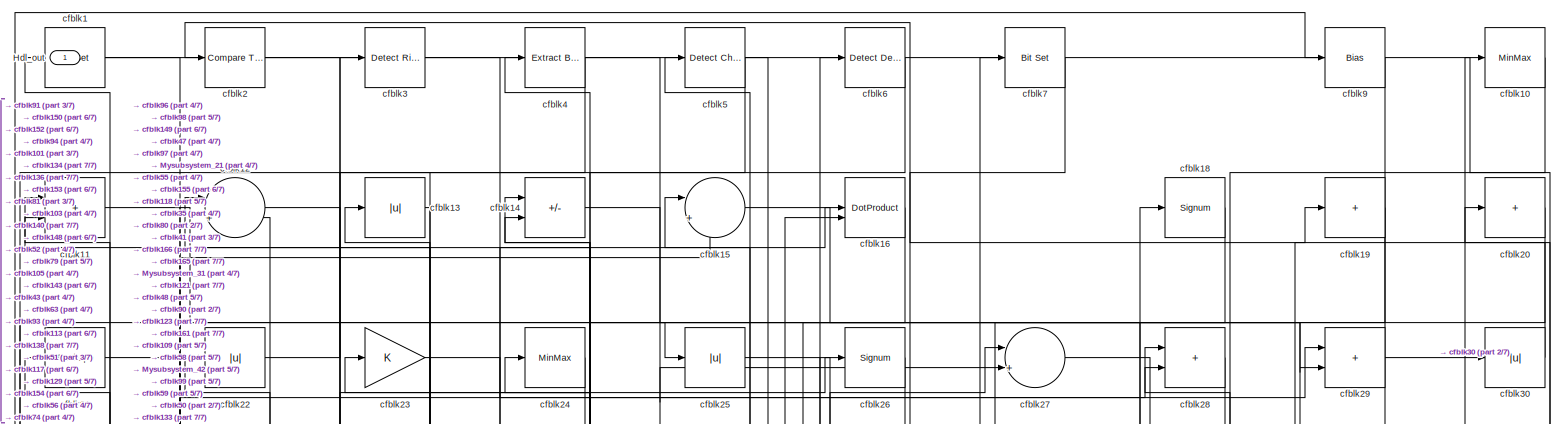
[diagram: root canvas - part 1/7, full width, top band]
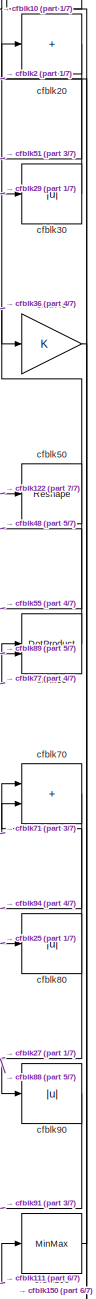
[diagram: root canvas - part 2/7, top right region]
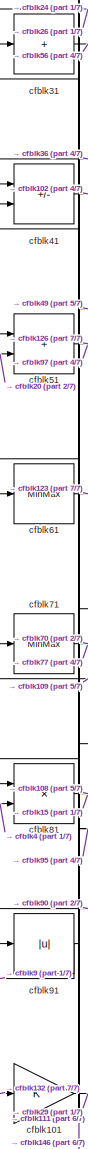
[diagram: root canvas - part 3/7, middle left region]
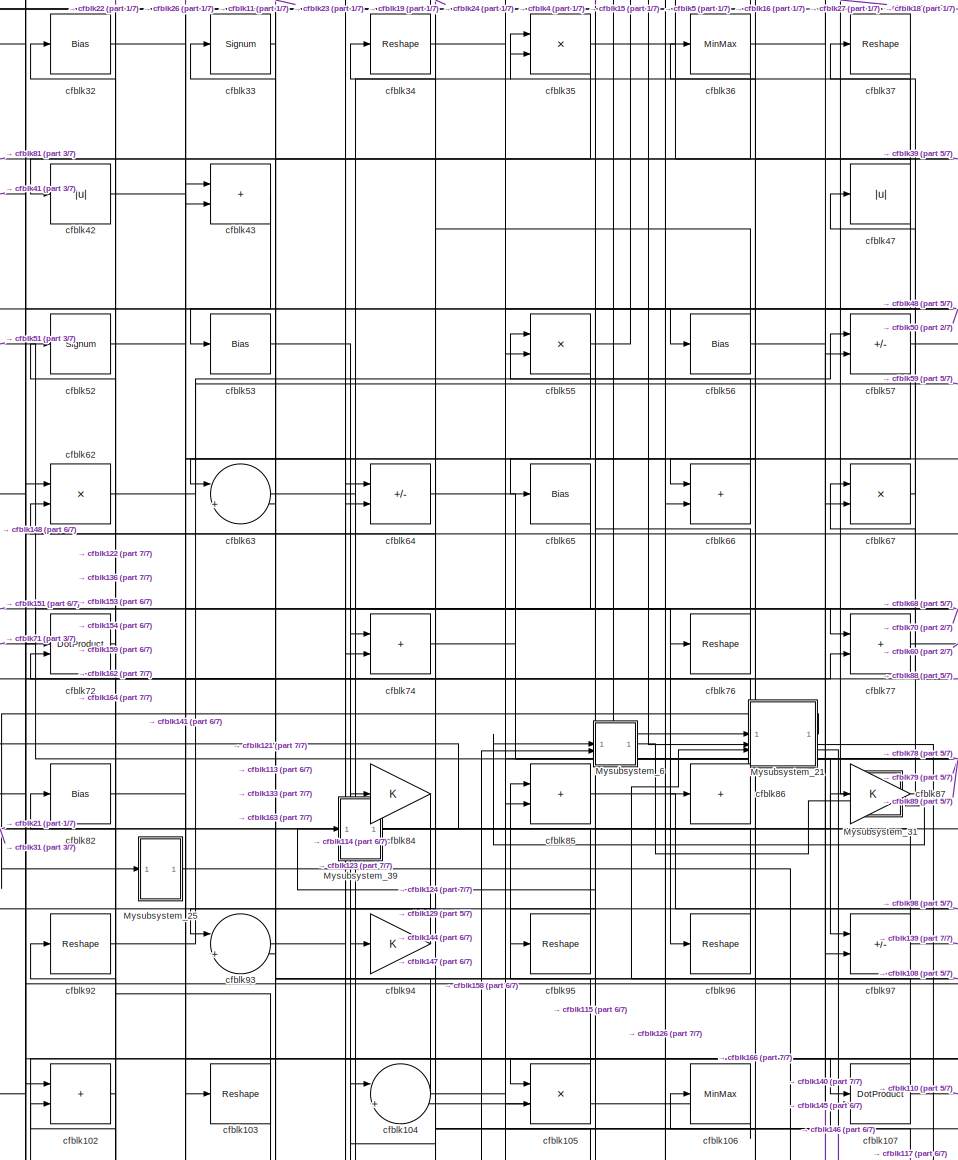
[diagram: root canvas - part 4/7, central region]
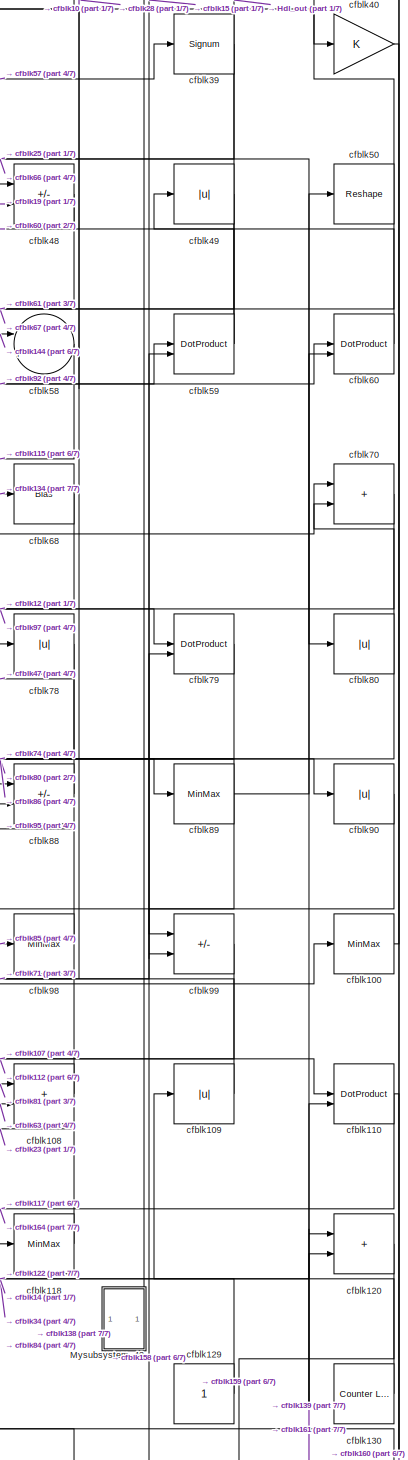
[diagram: root canvas - part 5/7, middle right region]
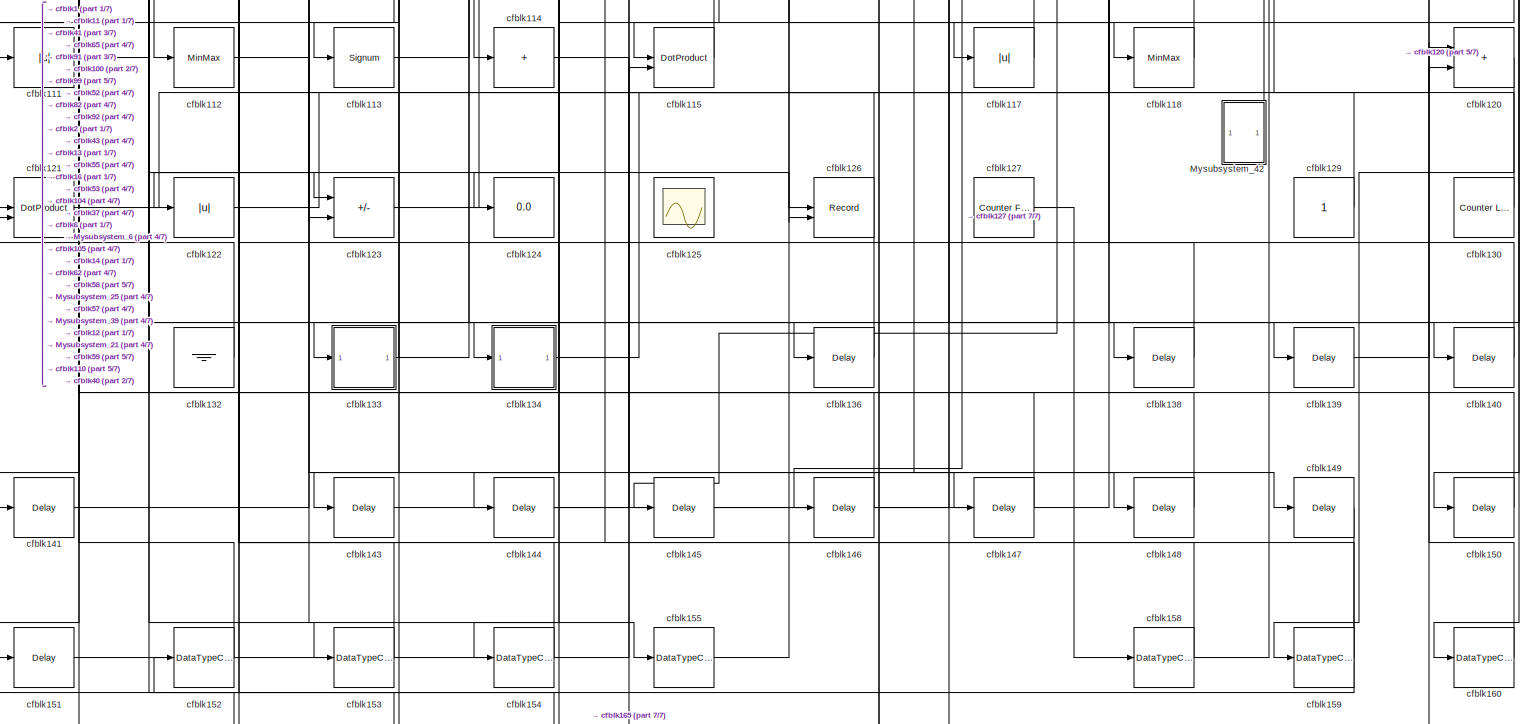
[diagram: root canvas - part 6/7, full width, bottom band]
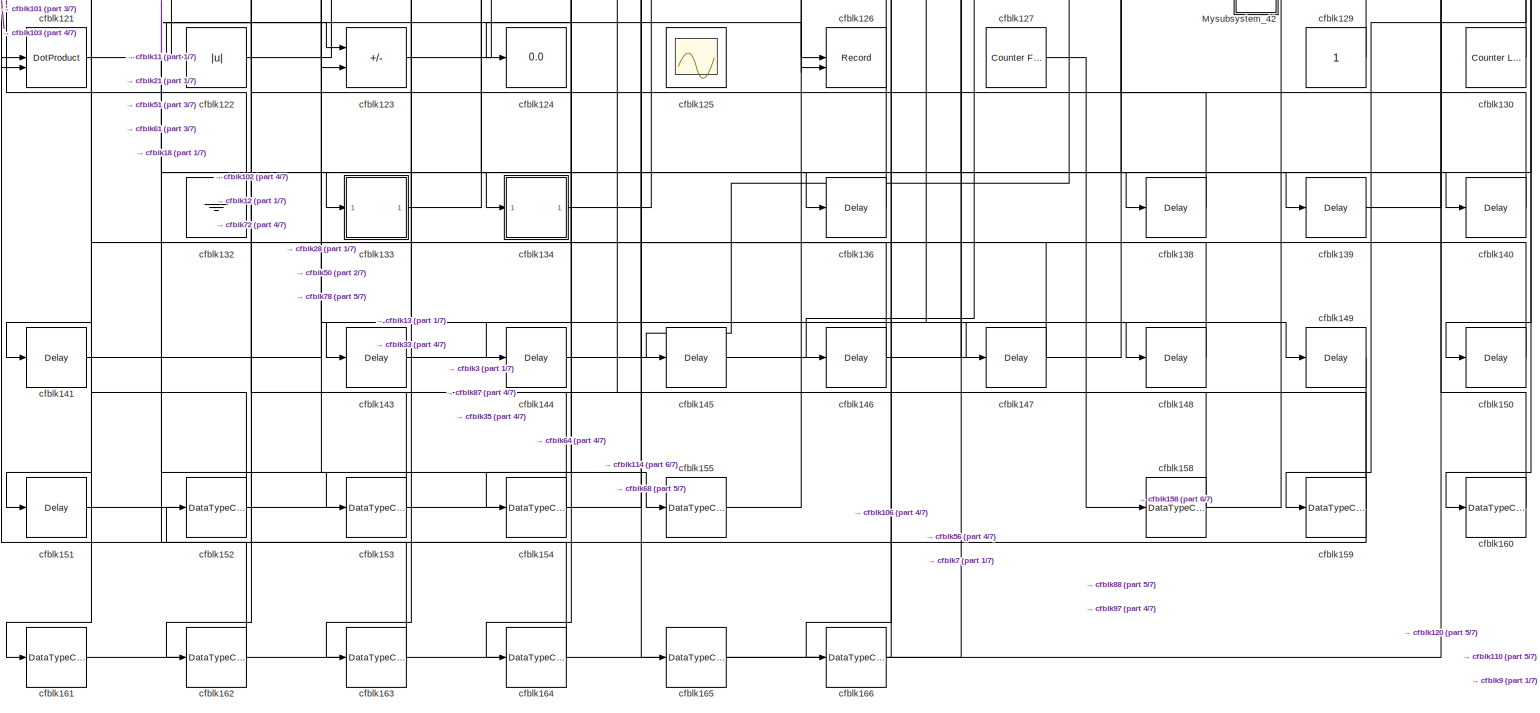
[diagram: root canvas - part 7/7, full width, bottom band]
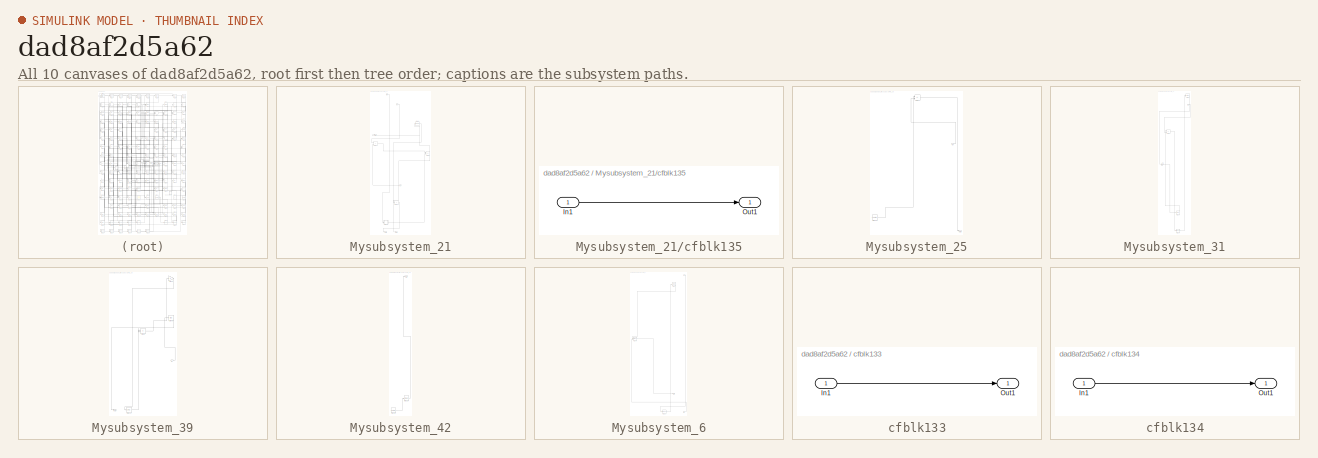
[diagram: thumbnail index - all 10 canvases of the model, root first then tree order]
MODEL slx_dad8af2d5a62
KIND model
CONFIG AbsTol = auto
CONFIG EnableMultiTasking = off
CONFIG FixedStep = auto
CONFIG MaxStep = auto
CONFIG MinStep = auto
CONFIG RelTol = 1e-3
CONFIG SampleTimeConstraint = Unconstrained
CONFIG SolverName = VariableStepAuto
CONFIG StartTime = 0.0
CONFIG StopTime = 10.0
BLOCK [Outport] Hdl_out
  OutDataTypeStr = uint8
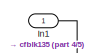
[diagram: Mysubsystem_21 - part 1/5, top left region]
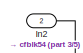
[diagram: Mysubsystem_21 - part 2/5, top center region]
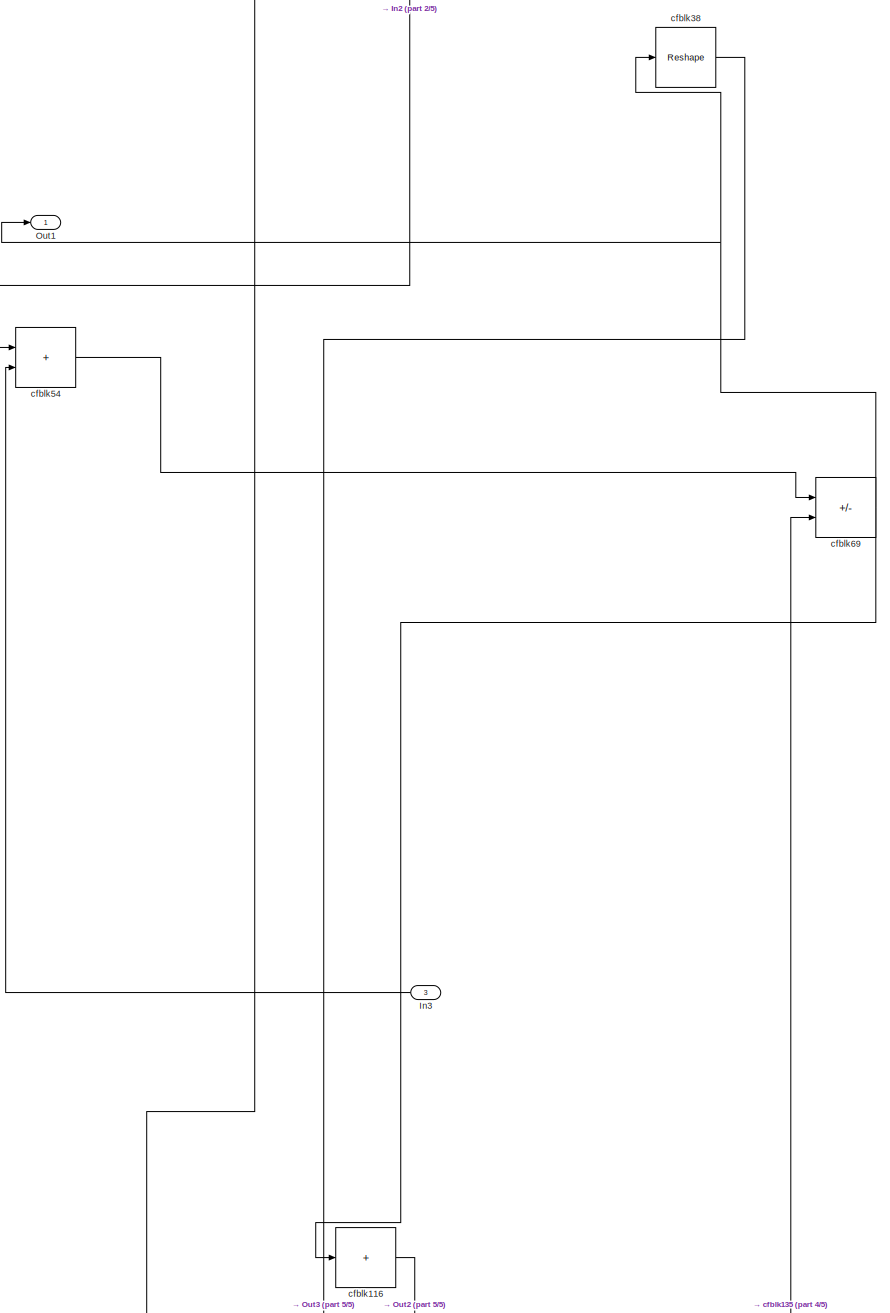
[diagram: Mysubsystem_21 - part 3/5, full width, middle band]
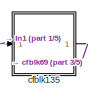
[diagram: Mysubsystem_21 - part 4/5, bottom left region]
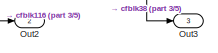
[diagram: Mysubsystem_21 - part 5/5, bottom center region]
BLOCK [SubSystem] Mysubsystem_21
  RTWFcnName = Mysubsystem_21
  RTWFcnNameOpts = User specified
  RTWFileNameOpts = Use function name
  RTWSystemCode = Reusable function
  TreatAsAtomicUnit = on
BLOCK [Inport] Mysubsystem_21/In1
BLOCK [Inport] Mysubsystem_21/In2
  Port = 2
BLOCK [Inport] Mysubsystem_21/In3
  Port = 3
BLOCK [Outport] Mysubsystem_21/Out1
BLOCK [Outport] Mysubsystem_21/Out2
  Port = 2
BLOCK [Outport] Mysubsystem_21/Out3
  Port = 3
BLOCK [Sum] Mysubsystem_21/cfblk116
  IconShape = rectangular
  Inputs = +
BLOCK [SubSystem] Mysubsystem_21/cfblk135
  LibrarySourceBlock = hdlsllib/Ports &\nSubsystems/Subsystem
BLOCK [Inport] Mysubsystem_21/cfblk135/In1
BLOCK [Outport] Mysubsystem_21/cfblk135/Out1
BLOCK [Reshape] Mysubsystem_21/cfblk38
BLOCK [Sum] Mysubsystem_21/cfblk54
  IconShape = rectangular
BLOCK [Sum] Mysubsystem_21/cfblk69
  IconShape = rectangular
  Inputs = +-
BLOCK [SubSystem] Mysubsystem_25
  RTWFcnName = Mysubsystem_25
  RTWFcnNameOpts = User specified
  RTWFileNameOpts = Use function name
  RTWSystemCode = Reusable function
  TreatAsAtomicUnit = on
BLOCK [Inport] Mysubsystem_25/In1
BLOCK [Outport] Mysubsystem_25/Out1
BLOCK [Reference] Mysubsystem_25/cfblk131  REF=hdlsllib/Sources/Counter
Limited
  SourceBlock = hdlsllib/Sources/Counter\nLimited
  SourceType = Counter Limited
BLOCK [Sum] Mysubsystem_25/cfblk44
  IconShape = rectangular
  Inputs = +-
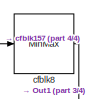
[diagram: Mysubsystem_31 - part 1/4, top right region]
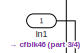
[diagram: Mysubsystem_31 - part 2/4, top right region]
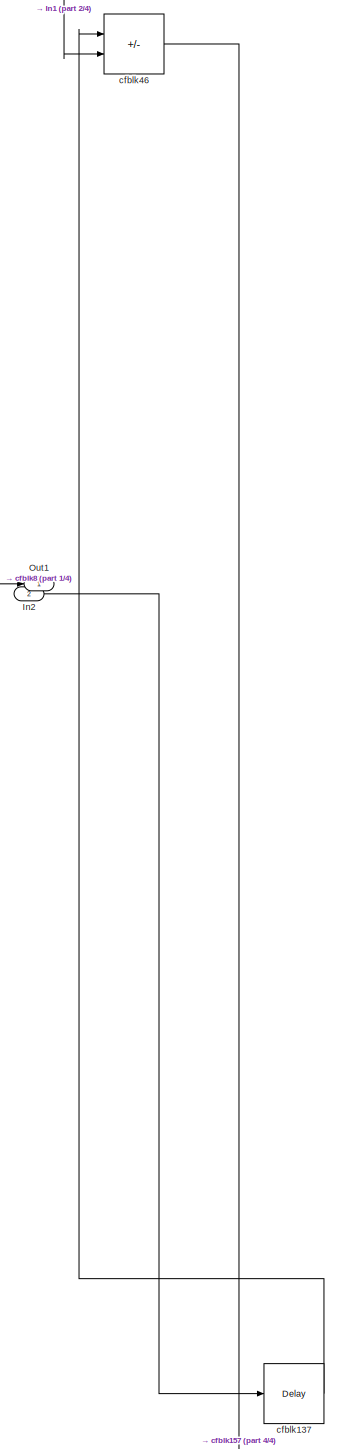
[diagram: Mysubsystem_31 - part 3/4, central region]
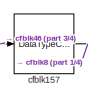
[diagram: Mysubsystem_31 - part 4/4, bottom center region]
BLOCK [SubSystem] Mysubsystem_31
  RTWFcnName = Mysubsystem_31
  RTWFcnNameOpts = User specified
  RTWFileNameOpts = Use function name
  RTWSystemCode = Reusable function
  TreatAsAtomicUnit = on
BLOCK [Inport] Mysubsystem_31/In1
BLOCK [Inport] Mysubsystem_31/In2
  Port = 2
BLOCK [Outport] Mysubsystem_31/Out1
BLOCK [Delay] Mysubsystem_31/cfblk137
  InputPortMap = u0
  SampleTime = 1
BLOCK [DataTypeConversion] Mysubsystem_31/cfblk157
  OutDataTypeStr = uint8
  RndMeth = Floor
  SaturateOnIntegerOverflow = off
BLOCK [Sum] Mysubsystem_31/cfblk46
  IconShape = rectangular
  Inputs = +-
BLOCK [MinMax] Mysubsystem_31/cfblk8
BLOCK [SubSystem] Mysubsystem_39
  RTWFcnName = Mysubsystem_39
  RTWFcnNameOpts = User specified
  RTWFileNameOpts = Use function name
  RTWSystemCode = Reusable function
  TreatAsAtomicUnit = on
BLOCK [Inport] Mysubsystem_39/In1
BLOCK [Outport] Mysubsystem_39/Out1
BLOCK [Delay] Mysubsystem_39/cfblk142
  InputPortMap = u0
  SampleTime = 1
BLOCK [Gain] Mysubsystem_39/cfblk45
BLOCK [Bias] Mysubsystem_39/cfblk75
  Bias = 0.0
  SaturateOnIntegerOverflow = off
BLOCK [Product] Mysubsystem_39/cfblk83
  Inputs = */
  RndMeth = Zero
  SaturateOnIntegerOverflow = on
BLOCK [SubSystem] Mysubsystem_42
  RTWFcnName = Mysubsystem_42
  RTWFcnNameOpts = User specified
  RTWFileNameOpts = Use function name
  RTWSystemCode = Reusable function
  TreatAsAtomicUnit = on
BLOCK [Outport] Mysubsystem_42/Out1
BLOCK [MinMax] Mysubsystem_42/cfblk119
BLOCK [Reference] Mysubsystem_42/cfblk128  REF=hdlsllib/Sources/Counter
Free-Running
  SourceBlock = hdlsllib/Sources/Counter\nFree-Running
  SourceType = Counter Free-Running
BLOCK [SubSystem] Mysubsystem_6
  RTWFcnName = Mysubsystem_6
  RTWFcnNameOpts = User specified
  RTWFileNameOpts = Use function name
  RTWSystemCode = Reusable function
  TreatAsAtomicUnit = on
BLOCK [Inport] Mysubsystem_6/In1
BLOCK [Inport] Mysubsystem_6/In2
  Port = 2
BLOCK [Outport] Mysubsystem_6/Out1
BLOCK [DataTypeConversion] Mysubsystem_6/cfblk156
  OutDataTypeStr = uint8
  RndMeth = Floor
  SaturateOnIntegerOverflow = off
BLOCK [Signum] Mysubsystem_6/cfblk17
BLOCK [DotProduct] Mysubsystem_6/cfblk73
  OutDataTypeStr = Inherit: Inherit via internal rule
BLOCK [Reference] cfblk1  REF=simulink/Logic and Bit
Operations/Bit Set
  LibrarySourceBlock = hdlsllib/Logic and Bit\nOperations/Bit Set
  SourceBlock = simulink/Logic and Bit\nOperations/Bit Set
  SourceType = Bit Set
BLOCK [MinMax] cfblk10
  OutDataTypeStr = uint8
BLOCK [MinMax] cfblk100
  OutDataTypeStr = uint8
BLOCK [Gain] cfblk101
  OutDataTypeStr = uint8
BLOCK [Sum] cfblk102
  IconShape = rectangular
  OutDataTypeStr = uint8
BLOCK [Reshape] cfblk103
BLOCK [Sum] cfblk104
  Inputs = |++
  OutDataTypeStr = uint8
BLOCK [Product] cfblk105
  Inputs = */
  OutDataTypeStr = uint8
  RndMeth = Zero
  SaturateOnIntegerOverflow = on
BLOCK [MinMax] cfblk106
  OutDataTypeStr = uint8
BLOCK [DotProduct] cfblk107
  OutDataTypeStr = uint8
BLOCK [Sum] cfblk108
  IconShape = rectangular
  OutDataTypeStr = uint8
BLOCK [Abs] cfblk109
  OutDataTypeStr = uint8
  SaturateOnIntegerOverflow = off
BLOCK [Sum] cfblk11
  IconShape = rectangular
  OutDataTypeStr = uint8
BLOCK [DotProduct] cfblk110
  OutDataTypeStr = uint8
BLOCK [Abs] cfblk111
  OutDataTypeStr = uint8
  SaturateOnIntegerOverflow = off
BLOCK [MinMax] cfblk112
  OutDataTypeStr = uint8
BLOCK [Signum] cfblk113
BLOCK [Sum] cfblk114
  IconShape = rectangular
  Inputs = +
  OutDataTypeStr = uint8
BLOCK [DotProduct] cfblk115
  OutDataTypeStr = uint8
BLOCK [Abs] cfblk117
  OutDataTypeStr = uint8
  SaturateOnIntegerOverflow = off
BLOCK [MinMax] cfblk118
  OutDataTypeStr = uint8
BLOCK [Sum] cfblk12
  Inputs = |++
  OutDataTypeStr = uint8
BLOCK [Sum] cfblk120
  IconShape = rectangular
  OutDataTypeStr = uint8
BLOCK [DotProduct] cfblk121
  OutDataTypeStr = uint8
BLOCK [Abs] cfblk122
  OutDataTypeStr = uint8
  SaturateOnIntegerOverflow = off
BLOCK [Sum] cfblk123
  IconShape = rectangular
  Inputs = +-
  OutDataTypeStr = uint8
BLOCK [Display] cfblk124
  Decimation = 1
BLOCK [Scope] cfblk125
  Floating = on
  NumInputPorts = 1
  ScopeSpecificationString = Simulink.scopes.TimeScopeBlockCfg('CurrentConfiguration', extmgr.ConfigurationSet(extmgr.Configuration('Core','General UI',true,'FigureColor',[0.156862745098039 0.156862745098039 0.156862745098039]),extmgr.Configuration('Core','Source UI',true),extmgr.Configuration('Sources','WiredSimulink',true,'DataLoggingVariableName','ScopeData1','DataLoggingSaveFormat','StructureWithTime','DataLoggingLimitDat...<+2713ch>
BLOCK [Record] cfblk126
  CompatibilityTag = XY
  FileSettingsInternal = {"entries":[{"content":{"excelSettings":{"content":{},"type":"Streamout.ExcelSettings"}},"type":"Streamout.FileSettingStorage","uuid":""}],"packageUris":["http:\/\/schema.mathworks.com\/mf0\/streamout_blocks\/R2020a"],"version":"1.0"}
  Layout = [1 1]
  SignalsInternal = {"entries":[{"content":{"signals":[{"content":{"blockPath":[],"dimensions":[1],"domain":"","lineColor":"#a2142f","plots":[1],"port":1,"signalID":23926,"signalName":"cfblk64"},"type":"RecordBlkView.Signal","uuid":""},{"content":{"blockPath":[],"dimensions":[1],"domain":"","lineColor":"#139fff","plots":[1],"port":2,"signalID":23929,"signalName":"cfblk51"},"type":"RecordBlkView.Signal","uuid":""}]},"...<+142ch>
  VisualizationBindings = {"xyplotplugin":{"info":[{"series":[{"bindingParametersList":[{"parameter":"X-Axis","signalID":23926,"signalName":"cfblk64"},{"parameter":"Y-Axis","signalID":23929,"signalName":"cfblk51"}],"seriesID":56969}],"subplotID":1}]}}
  st = -1
BLOCK [Reference] cfblk127  REF=hdlsllib/Sources/Counter
Free-Running
  SourceBlock = hdlsllib/Sources/Counter\nFree-Running
  SourceType = Counter Free-Running
BLOCK [Constant] cfblk129
  OutDataTypeStr = uint8
  SampleTime = -1
BLOCK [Abs] cfblk13
  OutDataTypeStr = uint8
  SaturateOnIntegerOverflow = off
BLOCK [Reference] cfblk130  REF=hdlsllib/Sources/Counter
Limited
  SourceBlock = hdlsllib/Sources/Counter\nLimited
  SourceType = Counter Limited
BLOCK [Ground] cfblk132
BLOCK [SubSystem] cfblk133
  LibrarySourceBlock = hdlsllib/Ports &\nSubsystems/Subsystem
BLOCK [Inport] cfblk133/In1
BLOCK [Outport] cfblk133/Out1
BLOCK [SubSystem] cfblk134
  LibrarySourceBlock = hdlsllib/Ports &\nSubsystems/Subsystem
BLOCK [Inport] cfblk134/In1
BLOCK [Outport] cfblk134/Out1
BLOCK [Delay] cfblk136
  InputPortMap = u0
  SampleTime = 1
BLOCK [Delay] cfblk138
  InputPortMap = u0
  SampleTime = 1
BLOCK [Delay] cfblk139
  InputPortMap = u0
  SampleTime = 1
BLOCK [Sum] cfblk14
  IconShape = rectangular
  Inputs = +-
  OutDataTypeStr = uint8
BLOCK [Delay] cfblk140
  InputPortMap = u0
  SampleTime = 1
BLOCK [Delay] cfblk141
  InputPortMap = u0
  SampleTime = 1
BLOCK [Delay] cfblk143
  InputPortMap = u0
  SampleTime = 1
BLOCK [Delay] cfblk144
  InputPortMap = u0
  SampleTime = 1
BLOCK [Delay] cfblk145
  InputPortMap = u0
  SampleTime = 1
BLOCK [Delay] cfblk146
  InputPortMap = u0
  SampleTime = 1
BLOCK [Delay] cfblk147
  InputPortMap = u0
  SampleTime = 1
BLOCK [Delay] cfblk148
  InputPortMap = u0
  SampleTime = 1
BLOCK [Delay] cfblk149
  InputPortMap = u0
  SampleTime = 1
BLOCK [Sum] cfblk15
  Inputs = |++
  OutDataTypeStr = uint8
BLOCK [Delay] cfblk150
  InputPortMap = u0
  SampleTime = 1
BLOCK [Delay] cfblk151
  InputPortMap = u0
  SampleTime = 1
BLOCK [DataTypeConversion] cfblk152
  OutDataTypeStr = uint8
  RndMeth = Floor
  SaturateOnIntegerOverflow = off
BLOCK [DataTypeConversion] cfblk153
  OutDataTypeStr = uint8
  RndMeth = Floor
  SaturateOnIntegerOverflow = off
BLOCK [DataTypeConversion] cfblk154
  OutDataTypeStr = uint8
  RndMeth = Floor
  SaturateOnIntegerOverflow = off
BLOCK [DataTypeConversion] cfblk155
  OutDataTypeStr = uint8
  RndMeth = Floor
  SaturateOnIntegerOverflow = off
BLOCK [DataTypeConversion] cfblk158
  OutDataTypeStr = uint8
  RndMeth = Floor
  SaturateOnIntegerOverflow = off
BLOCK [DataTypeConversion] cfblk159
  OutDataTypeStr = uint8
  RndMeth = Floor
  SaturateOnIntegerOverflow = off
BLOCK [DotProduct] cfblk16
  OutDataTypeStr = uint8
BLOCK [DataTypeConversion] cfblk160
  OutDataTypeStr = uint8
  RndMeth = Floor
  SaturateOnIntegerOverflow = off
BLOCK [DataTypeConversion] cfblk161
  OutDataTypeStr = uint8
  RndMeth = Floor
  SaturateOnIntegerOverflow = off
BLOCK [DataTypeConversion] cfblk162
  OutDataTypeStr = uint8
  RndMeth = Floor
  SaturateOnIntegerOverflow = off
BLOCK [DataTypeConversion] cfblk163
  OutDataTypeStr = uint8
  RndMeth = Floor
  SaturateOnIntegerOverflow = off
BLOCK [DataTypeConversion] cfblk164
  OutDataTypeStr = uint8
  RndMeth = Floor
  SaturateOnIntegerOverflow = off
BLOCK [DataTypeConversion] cfblk165
  OutDataTypeStr = uint8
  RndMeth = Floor
  SaturateOnIntegerOverflow = off
BLOCK [DataTypeConversion] cfblk166
  OutDataTypeStr = uint8
  RndMeth = Floor
  SaturateOnIntegerOverflow = off
BLOCK [Signum] cfblk18
BLOCK [Sum] cfblk19
  IconShape = rectangular
  Inputs = +
  OutDataTypeStr = uint8
BLOCK [Reference] cfblk2  REF=hdlsllib/Logic and Bit
Operations/Compare
To Zero
  SourceBlock = hdlsllib/Logic and Bit\nOperations/Compare\nTo Zero
  SourceType = Compare To Zero
BLOCK [Sum] cfblk20
  IconShape = rectangular
  Inputs = +
  OutDataTypeStr = uint8
BLOCK [Reshape] cfblk21
BLOCK [Abs] cfblk22
  OutDataTypeStr = uint8
  SaturateOnIntegerOverflow = off
BLOCK [Gain] cfblk23
  OutDataTypeStr = uint8
BLOCK [MinMax] cfblk24
  OutDataTypeStr = uint8
BLOCK [Abs] cfblk25
  OutDataTypeStr = uint8
  SaturateOnIntegerOverflow = off
BLOCK [Signum] cfblk26
BLOCK [Sum] cfblk27
  Inputs = |++
  OutDataTypeStr = uint8
BLOCK [Sum] cfblk28
  IconShape = rectangular
  OutDataTypeStr = uint8
BLOCK [Sum] cfblk29
  IconShape = rectangular
  OutDataTypeStr = uint8
BLOCK [Reference] cfblk3  REF=hdlsllib/Logic and Bit
Operations/Detect Rise
Nonnegative
  SourceBlock = hdlsllib/Logic and Bit\nOperations/Detect Rise\nNonnegative
  SourceType = Detect Rise Nonnegative
BLOCK [Abs] cfblk30
  OutDataTypeStr = uint8
  SaturateOnIntegerOverflow = off
BLOCK [Sum] cfblk31
  IconShape = rectangular
  Inputs = +
  OutDataTypeStr = uint8
BLOCK [Bias] cfblk32
  Bias = 0.0
  SaturateOnIntegerOverflow = off
BLOCK [Signum] cfblk33
BLOCK [Reshape] cfblk34
BLOCK [Product] cfblk35
  Inputs = */
  OutDataTypeStr = uint8
  RndMeth = Zero
  SaturateOnIntegerOverflow = on
BLOCK [MinMax] cfblk36
  OutDataTypeStr = uint8
BLOCK [Reshape] cfblk37
BLOCK [Signum] cfblk39
BLOCK [Reference] cfblk4  REF=simulink/Logic and Bit
Operations/Extract Bits
  LibrarySourceBlock = hdlsllib/Logic and Bit\nOperations/Extract Bits
  SourceBlock = simulink/Logic and Bit\nOperations/Extract Bits
  SourceType = Extract Bits
BLOCK [Gain] cfblk40
  OutDataTypeStr = uint8
BLOCK [Sum] cfblk41
  IconShape = rectangular
  Inputs = +-
  OutDataTypeStr = uint8
BLOCK [Abs] cfblk42
  OutDataTypeStr = uint8
  SaturateOnIntegerOverflow = off
BLOCK [Sum] cfblk43
  IconShape = rectangular
  OutDataTypeStr = uint8
BLOCK [Abs] cfblk47
  OutDataTypeStr = uint8
  SaturateOnIntegerOverflow = off
BLOCK [Sum] cfblk48
  IconShape = rectangular
  Inputs = +-
  OutDataTypeStr = uint8
BLOCK [Abs] cfblk49
  OutDataTypeStr = uint8
  SaturateOnIntegerOverflow = off
BLOCK [Reference] cfblk5  REF=simulink/Logic and Bit
Operations/Detect
Change
  LibrarySourceBlock = hdlsllib/Logic and Bit\nOperations/Detect\nChange
  SourceBlock = simulink/Logic and Bit\nOperations/Detect\nChange
  SourceType = Detect Change
BLOCK [Reshape] cfblk50
BLOCK [Sum] cfblk51
  IconShape = rectangular
  OutDataTypeStr = uint8
BLOCK [Signum] cfblk52
BLOCK [Bias] cfblk53
  Bias = 0.0
  SaturateOnIntegerOverflow = off
BLOCK [Product] cfblk55
  Inputs = */
  OutDataTypeStr = uint8
  RndMeth = Zero
  SaturateOnIntegerOverflow = on
BLOCK [Bias] cfblk56
  Bias = 0.0
  SaturateOnIntegerOverflow = off
BLOCK [Sum] cfblk57
  IconShape = rectangular
  Inputs = +-
  OutDataTypeStr = uint8
BLOCK [Sum] cfblk58
  Inputs = |++
  OutDataTypeStr = uint8
BLOCK [DotProduct] cfblk59
  OutDataTypeStr = uint8
BLOCK [Reference] cfblk6  REF=simulink/Logic and Bit
Operations/Detect
Decrease
  LibrarySourceBlock = hdlsllib/Logic and Bit\nOperations/Detect\nDecrease
  SourceBlock = simulink/Logic and Bit\nOperations/Detect\nDecrease
  SourceType = Detect Decrease
BLOCK [DotProduct] cfblk60
  OutDataTypeStr = uint8
BLOCK [MinMax] cfblk61
  OutDataTypeStr = uint8
BLOCK [Product] cfblk62
  Inputs = */
  OutDataTypeStr = uint8
  RndMeth = Zero
  SaturateOnIntegerOverflow = on
BLOCK [Sum] cfblk63
  Inputs = |++
  OutDataTypeStr = uint8
BLOCK [Sum] cfblk64
  IconShape = rectangular
  Inputs = +-
  OutDataTypeStr = uint8
BLOCK [Bias] cfblk65
  Bias = 0.0
  SaturateOnIntegerOverflow = off
BLOCK [Sum] cfblk66
  IconShape = rectangular
  OutDataTypeStr = uint8
BLOCK [Product] cfblk67
  Inputs = */
  OutDataTypeStr = uint8
  RndMeth = Zero
  SaturateOnIntegerOverflow = on
BLOCK [Bias] cfblk68
  Bias = 0.0
  SaturateOnIntegerOverflow = off
BLOCK [Reference] cfblk7  REF=simulink/Logic and Bit
Operations/Bit Set
  LibrarySourceBlock = hdlsllib/Logic and Bit\nOperations/Bit Set
  SourceBlock = simulink/Logic and Bit\nOperations/Bit Set
  SourceType = Bit Set
BLOCK [Sum] cfblk70
  IconShape = rectangular
  OutDataTypeStr = uint8
BLOCK [MinMax] cfblk71
  OutDataTypeStr = uint8
BLOCK [DotProduct] cfblk72
  OutDataTypeStr = uint8
BLOCK [Sum] cfblk74
  IconShape = rectangular
  OutDataTypeStr = uint8
BLOCK [Reshape] cfblk76
BLOCK [Sum] cfblk77
  IconShape = rectangular
  OutDataTypeStr = uint8
BLOCK [Abs] cfblk78
  OutDataTypeStr = uint8
  SaturateOnIntegerOverflow = off
BLOCK [DotProduct] cfblk79
  OutDataTypeStr = uint8
BLOCK [Abs] cfblk80
  OutDataTypeStr = uint8
  SaturateOnIntegerOverflow = off
BLOCK [Product] cfblk81
  Inputs = */
  OutDataTypeStr = uint8
  RndMeth = Zero
  SaturateOnIntegerOverflow = on
BLOCK [Bias] cfblk82
  Bias = 0.0
  SaturateOnIntegerOverflow = off
BLOCK [Gain] cfblk84
  OutDataTypeStr = uint8
BLOCK [Sum] cfblk85
  IconShape = rectangular
  OutDataTypeStr = uint8
BLOCK [Sum] cfblk86
  IconShape = rectangular
  Inputs = +
  OutDataTypeStr = uint8
BLOCK [Gain] cfblk87
  OutDataTypeStr = uint8
BLOCK [Sum] cfblk88
  IconShape = rectangular
  Inputs = +-
  OutDataTypeStr = uint8
BLOCK [MinMax] cfblk89
  OutDataTypeStr = uint8
BLOCK [Bias] cfblk9
  Bias = 0.0
  SaturateOnIntegerOverflow = off
BLOCK [Abs] cfblk90
  OutDataTypeStr = uint8
  SaturateOnIntegerOverflow = off
BLOCK [Abs] cfblk91
  OutDataTypeStr = uint8
  SaturateOnIntegerOverflow = off
BLOCK [Reshape] cfblk92
BLOCK [Sum] cfblk93
  Inputs = |++
  OutDataTypeStr = uint8
BLOCK [Gain] cfblk94
  OutDataTypeStr = uint8
BLOCK [Reshape] cfblk95
BLOCK [Reshape] cfblk96
BLOCK [Sum] cfblk97
  IconShape = rectangular
  Inputs = +-
  OutDataTypeStr = uint8
BLOCK [MinMax] cfblk98
  OutDataTypeStr = uint8
BLOCK [Sum] cfblk99
  IconShape = rectangular
  Inputs = +-
  OutDataTypeStr = uint8
LINE Mysubsystem_21/In1:1 -> Mysubsystem_21/cfblk135:1
LINE Mysubsystem_21/In2:1 -> Mysubsystem_21/cfblk54:1
LINE Mysubsystem_21/In3:1 -> Mysubsystem_21/cfblk54:2
LINE Mysubsystem_21/cfblk116:1 -> Mysubsystem_21/Out2:1
LINE Mysubsystem_21/cfblk135/In1:1 -> Mysubsystem_21/cfblk135/Out1:1
LINE Mysubsystem_21/cfblk135:1 -> Mysubsystem_21/cfblk69:2
LINE Mysubsystem_21/cfblk38:1 -> Mysubsystem_21/Out3:1
LINE Mysubsystem_21/cfblk54:1 -> Mysubsystem_21/cfblk69:1
NET Mysubsystem_21/cfblk69:1 -> Mysubsystem_21/Out1:1, Mysubsystem_21/cfblk116:1, Mysubsystem_21/cfblk38:1
LINE Mysubsystem_21:1 -> Mysubsystem_25:1
LINE Mysubsystem_21:2 -> cfblk145:1
LINE Mysubsystem_21:3 -> cfblk146:1
LINE Mysubsystem_25/In1:1 -> Mysubsystem_25/cfblk44:2
LINE Mysubsystem_25/cfblk131:1 -> Mysubsystem_25/cfblk44:1
LINE Mysubsystem_25/cfblk44:1 -> Mysubsystem_25/Out1:1
LINE Mysubsystem_25:1 -> cfblk147:1
LINE Mysubsystem_31/In1:1 -> Mysubsystem_31/cfblk46:2
LINE Mysubsystem_31/In2:1 -> Mysubsystem_31/cfblk137:1
LINE Mysubsystem_31/cfblk137:1 -> Mysubsystem_31/cfblk46:1
LINE Mysubsystem_31/cfblk157:1 -> Mysubsystem_31/cfblk8:1
LINE Mysubsystem_31/cfblk46:1 -> Mysubsystem_31/cfblk157:1
LINE Mysubsystem_31/cfblk8:1 -> Mysubsystem_31/Out1:1
LINE Mysubsystem_31:1 -> Mysubsystem_6:1
LINE Mysubsystem_39/In1:1 -> Mysubsystem_39/cfblk75:1
LINE Mysubsystem_39/cfblk142:1 -> Mysubsystem_39/cfblk83:1
LINE Mysubsystem_39/cfblk45:1 -> Mysubsystem_39/cfblk142:1
NET Mysubsystem_39/cfblk75:1 -> Mysubsystem_39/Out1:1, Mysubsystem_39/cfblk83:2
LINE Mysubsystem_39/cfblk83:1 -> Mysubsystem_39/cfblk45:1
LINE Mysubsystem_39:1 -> cfblk141:1
LINE Mysubsystem_42/cfblk119:1 -> Mysubsystem_42/Out1:1
LINE Mysubsystem_42/cfblk128:1 -> Mysubsystem_42/cfblk119:1
LINE Mysubsystem_42:1 -> cfblk19:1
LINE Mysubsystem_6/In1:1 -> Mysubsystem_6/cfblk156:1
LINE Mysubsystem_6/In2:1 -> Mysubsystem_6/cfblk73:2
LINE Mysubsystem_6/cfblk156:1 -> Mysubsystem_6/cfblk17:1
LINE Mysubsystem_6/cfblk17:1 -> Mysubsystem_6/cfblk73:1
LINE Mysubsystem_6/cfblk73:1 -> Mysubsystem_6/Out1:1
LINE Mysubsystem_6:1 -> Mysubsystem_31:2
LINE cfblk100:1 -> cfblk20:1
LINE cfblk101:1 -> cfblk29:1
LINE cfblk102:1 -> cfblk122:1
NET cfblk103:1 -> cfblk121:2, cfblk22:1
NET cfblk104:1 -> cfblk107:2, cfblk33:1
LINE cfblk105:1 -> cfblk11:1
LINE cfblk106:1 -> cfblk104:2
NET cfblk107:1 -> Mysubsystem_21:3, cfblk110:1, cfblk36:1, cfblk79:2
LINE cfblk108:1 -> cfblk85:1
NET cfblk109:1 -> cfblk28:1, cfblk71:1
LINE cfblk10:1 -> cfblk58:2
NET cfblk110:1 -> cfblk117:1, cfblk160:1, cfblk164:1
LINE cfblk111:1 -> cfblk100:1
LINE cfblk112:1 -> cfblk155:1
LINE cfblk113:1 -> cfblk16:1
LINE cfblk114:1 -> cfblk165:1
LINE cfblk115:1 -> cfblk62:2
NET cfblk117:1 -> Mysubsystem_39:1, cfblk12:1
LINE cfblk118:1 -> cfblk23:1
NET cfblk11:1 -> cfblk134:1, cfblk25:1
LINE cfblk120:1 -> cfblk159:1
LINE cfblk121:1 -> cfblk18:1
NET cfblk122:1 -> cfblk50:1, cfblk78:1
LINE cfblk123:1 -> cfblk35:1
LINE cfblk127:1 -> cfblk158:1
NET cfblk129:1 -> cfblk14:2, cfblk34:1, cfblk84:1
LINE cfblk12:1 -> cfblk79:1
LINE cfblk130:1 -> cfblk109:1
LINE cfblk132:1 -> cfblk101:1
LINE cfblk133/In1:1 -> cfblk133/Out1:1
NET cfblk133:1 -> cfblk13:1, cfblk87:1
LINE cfblk134/In1:1 -> cfblk134/Out1:1
LINE cfblk134:1 -> cfblk68:1
LINE cfblk136:1 -> cfblk102:2
LINE cfblk138:1 -> cfblk88:1
LINE cfblk139:1 -> cfblk110:2
LINE cfblk13:1 -> cfblk143:1
LINE cfblk140:1 -> cfblk12:2
LINE cfblk141:1 -> cfblk43:1
LINE cfblk143:1 -> cfblk115:2
LINE cfblk144:1 -> cfblk58:1
LINE cfblk145:1 -> cfblk57:2
LINE cfblk146:1 -> cfblk41:2
LINE cfblk147:1 -> cfblk104:1
LINE cfblk148:1 -> cfblk62:1
LINE cfblk149:1 -> cfblk152:1
NET cfblk14:1 -> cfblk149:1, cfblk27:2
LINE cfblk150:1 -> cfblk11:2
LINE cfblk151:1 -> cfblk105:2
LINE cfblk152:1 -> cfblk1:1
LINE cfblk153:1 -> cfblk52:1
LINE cfblk154:1 -> cfblk82:1
LINE cfblk155:1 -> cfblk6:1
NET cfblk158:1 -> Mysubsystem_6:2, cfblk59:2
LINE cfblk159:1 -> cfblk92:1
LINE cfblk15:1 -> cfblk99:1
LINE cfblk160:1 -> cfblk120:1
LINE cfblk161:1 -> cfblk120:2
LINE cfblk162:1 -> cfblk121:1
LINE cfblk163:1 -> cfblk72:1
LINE cfblk164:1 -> cfblk72:2
LINE cfblk165:1 -> cfblk7:1
LINE cfblk166:1 -> cfblk106:1
LINE cfblk16:1 -> Mysubsystem_21:2
LINE cfblk18:1 -> Mysubsystem_31:1
NET cfblk19:1 -> cfblk48:2, cfblk74:1
LINE cfblk1:1 -> cfblk153:1
LINE cfblk20:1 -> cfblk51:2
LINE cfblk21:1 -> cfblk136:1
LINE cfblk22:1 -> cfblk3:1
NET cfblk23:1 -> cfblk28:2, cfblk93:2
LINE cfblk24:1 -> cfblk51:1
NET cfblk25:1 -> cfblk118:1, cfblk80:1
LINE cfblk26:1 -> cfblk41:1
LINE cfblk27:1 -> cfblk90:1
NET cfblk28:1 -> cfblk123:2, cfblk161:1
LINE cfblk29:1 -> cfblk30:1
LINE cfblk2:1 -> cfblk148:1
LINE cfblk30:1 -> cfblk2:1
LINE cfblk31:1 -> cfblk56:1
LINE cfblk32:1 -> cfblk64:2
LINE cfblk33:1 -> cfblk163:1
LINE cfblk34:1 -> cfblk76:1
NET cfblk35:1 -> cfblk27:1, cfblk63:1, cfblk74:2
NET cfblk36:1 -> cfblk40:1, cfblk81:1
NET cfblk37:1 -> cfblk144:1, cfblk42:1
LINE cfblk39:1 -> cfblk66:1
LINE cfblk3:1 -> cfblk138:1
LINE cfblk40:1 -> cfblk150:1
LINE cfblk41:1 -> cfblk102:1
LINE cfblk42:1 -> cfblk66:2
LINE cfblk43:1 -> cfblk53:1
NET cfblk47:1 -> cfblk5:1, cfblk65:1
LINE cfblk48:1 -> cfblk67:2
LINE cfblk49:1 -> cfblk61:1
NET cfblk4:1 -> cfblk29:2, cfblk81:2
NET cfblk50:1 -> cfblk10:1, cfblk55:2
NET cfblk51:1 -> cfblk126:2, cfblk97:1
LINE cfblk52:1 -> cfblk26:1
LINE cfblk53:1 -> cfblk114:1
NET cfblk55:1 -> cfblk113:1, cfblk16:2
NET cfblk56:1 -> cfblk140:1, cfblk24:1
NET cfblk57:1 -> cfblk105:1, cfblk39:1
LINE cfblk58:1 -> cfblk115:1
NET cfblk59:1 -> Hdl_out:1, cfblk49:1
NET cfblk5:1 -> Mysubsystem_21:1, cfblk43:2, cfblk63:2
LINE cfblk60:1 -> cfblk48:1
LINE cfblk61:1 -> cfblk123:1
NET cfblk62:1 -> cfblk107:1, cfblk57:1
NET cfblk63:1 -> cfblk108:2, cfblk96:1
NET cfblk64:1 -> cfblk124:1, cfblk126:1
LINE cfblk65:1 -> cfblk151:1
LINE cfblk66:1 -> cfblk55:1
LINE cfblk67:1 -> cfblk37:1
LINE cfblk68:1 -> cfblk97:2
LINE cfblk6:1 -> cfblk154:1
LINE cfblk70:1 -> cfblk94:1
NET cfblk71:1 -> cfblk70:2, cfblk77:1
LINE cfblk72:1 -> cfblk162:1
LINE cfblk74:1 -> cfblk89:1
LINE cfblk76:1 -> cfblk35:2
LINE cfblk77:1 -> cfblk60:1
LINE cfblk78:1 -> cfblk85:2
LINE cfblk79:1 -> cfblk95:1
LINE cfblk7:1 -> cfblk166:1
NET cfblk80:1 -> cfblk70:1, cfblk88:2
NET cfblk81:1 -> cfblk108:1, cfblk15:2, cfblk77:2
LINE cfblk82:1 -> cfblk103:1
LINE cfblk84:1 -> cfblk93:1
LINE cfblk85:1 -> cfblk98:1
LINE cfblk86:1 -> cfblk32:1
LINE cfblk87:1 -> cfblk67:1
LINE cfblk88:1 -> cfblk47:1
NET cfblk89:1 -> cfblk60:2, cfblk86:1, cfblk99:2
LINE cfblk90:1 -> cfblk91:1
NET cfblk91:1 -> cfblk111:1, cfblk9:1
LINE cfblk92:1 -> cfblk59:1
LINE cfblk93:1 -> cfblk64:1
LINE cfblk94:1 -> cfblk21:1
LINE cfblk95:1 -> cfblk31:1
LINE cfblk96:1 -> cfblk4:1
NET cfblk97:1 -> cfblk139:1, cfblk15:1
LINE cfblk98:1 -> cfblk14:1
LINE cfblk99:1 -> cfblk112:1
LINE cfblk9:1 -> cfblk133:1
note: NET lines group one-source signal fan-out (src -> all destinations, sorted); 1:1 wires keep LINE
